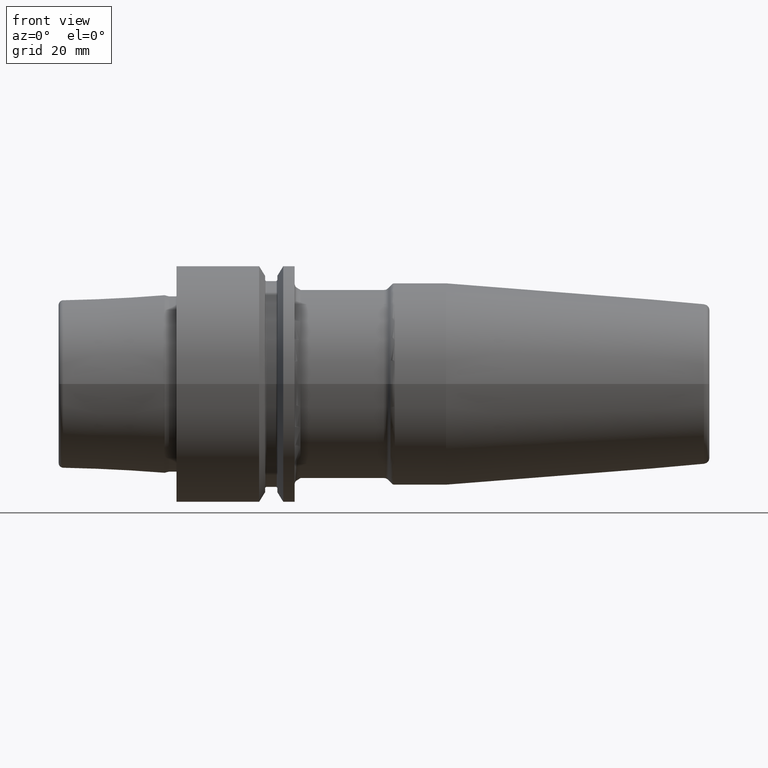
[diagram: clean part render]
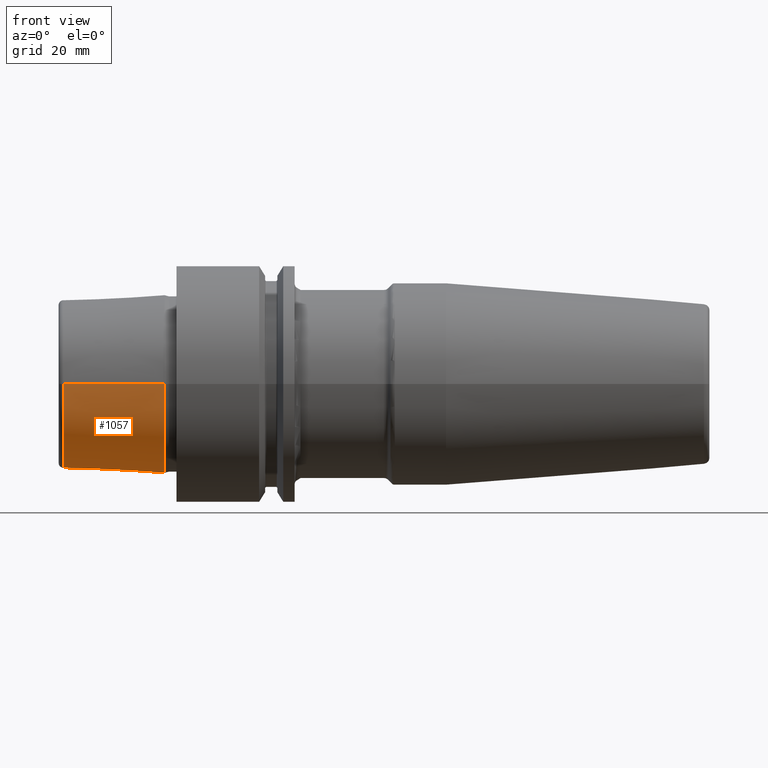
[diagram: same view with one face highlighted and labeled with its STEP entity id]
A machine part, front view. The second image highlights one B-rep face of the part: STEP entity #1057.
In plain terms, the highlighted conical surface has half-angle 2.868 deg.
Its self-contained STEP definition (entity closure, byte-faithful):
#25=CARTESIAN_POINT('',(-2.E0,0.E0,0.E0));
#26=DIRECTION('',(1.E0,0.E0,0.E0));
#27=DIRECTION('',(0.E0,-1.E0,0.E0));
#28=AXIS2_PLACEMENT_3D('',#25,#26,#27);
#30=DIRECTION('',(-9.987473526255E-1,-5.003724236654E-2,0.E0));
#31=VECTOR('',#30,1.716152713580E1);
#32=CARTESIAN_POINT('',(-2.E0,1.51037E1,0.E0));
#33=LINE('',#32,#31);
#34=DIRECTION('',(-9.987473526255E-1,5.003724236654E-2,0.E0));
#35=VECTOR('',#34,1.716152713580E1);
#36=CARTESIAN_POINT('',(-2.E0,-1.51037E1,0.E0));
#37=LINE('',#36,#35);
#48=CARTESIAN_POINT('',(-1.914002979389E1,0.E0,0.E0));
#49=DIRECTION('',(-1.E0,0.E0,0.E0));
#50=DIRECTION('',(0.E0,1.E0,0.E0));
#51=AXIS2_PLACEMENT_3D('',#48,#49,#50);
#828=CARTESIAN_POINT('',(-2.E0,1.51037E1,0.E0));
#829=CARTESIAN_POINT('',(-2.E0,-1.51037E1,0.E0));
#830=VERTEX_POINT('',#828);
#831=VERTEX_POINT('',#829);
#832=CARTESIAN_POINT('',(-1.914002979389E1,1.424498450733E1,0.E0));
#833=VERTEX_POINT('',#832);
#834=CARTESIAN_POINT('',(-1.914002979389E1,-1.424498450733E1,0.E0));
#835=VERTEX_POINT('',#834);
#1045=CARTESIAN_POINT('',(-1.057001489695E1,0.E0,0.E0));
#1046=DIRECTION('',(1.E0,0.E0,0.E0));
#1047=DIRECTION('',(0.E0,-1.E0,0.E0));
#1048=AXIS2_PLACEMENT_3D('',#1045,#1046,#1047);
#1049=CONICAL_SURFACE('',#1048,1.467434225366E1,2.868120487315E0);
#1050=ORIENTED_EDGE('',*,*,#1036,.T.);
#1051=ORIENTED_EDGE('',*,*,#1011,.T.);
#1053=ORIENTED_EDGE('',*,*,#1052,.T.);
#1054=ORIENTED_EDGE('',*,*,#1007,.F.);
#1055=EDGE_LOOP('',(#1050,#1051,#1053,#1054));
#1056=FACE_OUTER_BOUND('',#1055,.F.);
#1057=ADVANCED_FACE('',(#1056),#1049,.T.);
#29=CIRCLE('',#28,1.51037E1);
#52=CIRCLE('',#51,1.424498450733E1);
#1007=EDGE_CURVE('',#831,#835,#37,.T.);
#1011=EDGE_CURVE('',#830,#833,#33,.T.);
#1036=EDGE_CURVE('',#831,#830,#29,.T.);
#1052=EDGE_CURVE('',#833,#835,#52,.T.);